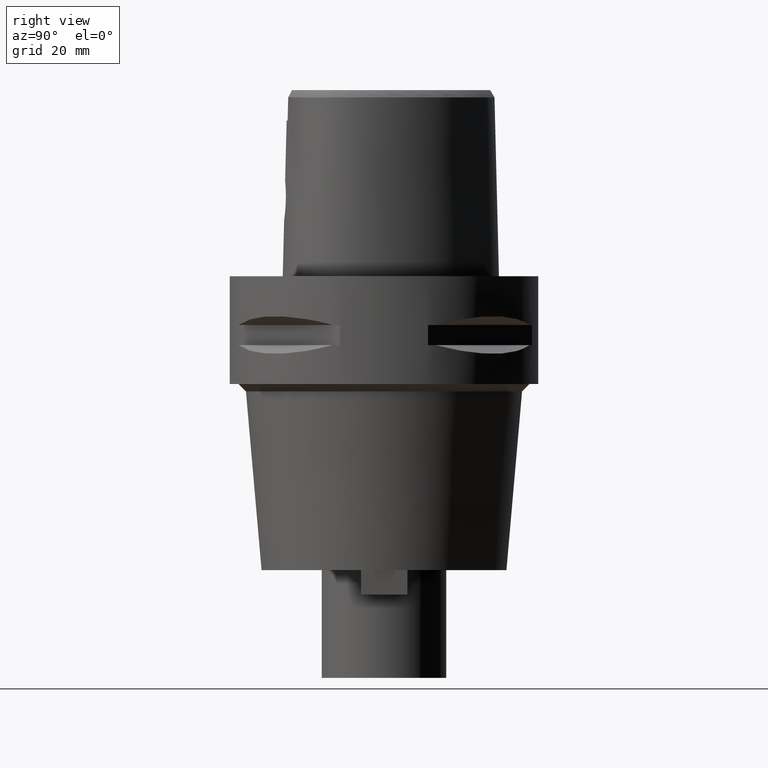
[diagram: clean part render]
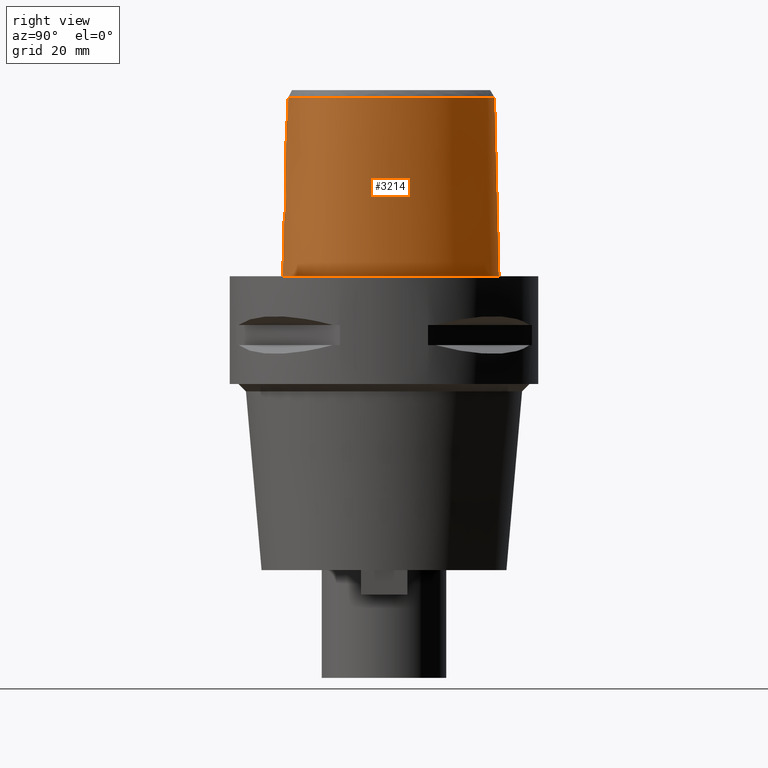
[diagram: same view with one face highlighted and labeled with its STEP entity id]
A machine part, right view. The second image highlights one B-rep face of the part: STEP entity #3214.
In plain terms, the highlighted face is a freeform B-spline surface patch.
Its self-contained STEP definition (entity closure, byte-faithful):
#138=CARTESIAN_POINT('',(3.637738219117E0,-1.956971420299E1,3.652185956444E1));
#148=CARTESIAN_POINT('',(-1.574547275019E-11,2.256201468012E1,
3.652186680744E1));
#149=CARTESIAN_POINT('',(3.791065170563E-1,2.256201468011E1,3.652186680744E1));
#150=CARTESIAN_POINT('',(1.138155706911E0,2.252483131287E1,3.652179190455E1));
#151=CARTESIAN_POINT('',(2.366879399490E0,2.234003555295E1,3.652187768307E1));
#152=CARTESIAN_POINT('',(3.642363182740E0,2.201542927447E1,3.652186339971E1));
#153=CARTESIAN_POINT('',(4.976406923680E0,2.153687948630E1,3.652187426106E1));
#154=CARTESIAN_POINT('',(6.356002048130E0,2.089326843363E1,3.652186565345E1));
#155=CARTESIAN_POINT('',(7.745814564190E0,2.009187307787E1,3.652186848449E1));
#156=CARTESIAN_POINT('',(9.119668395303E0,1.914770531107E1,3.652186622293E1));
#157=CARTESIAN_POINT('',(1.050734421812E1,1.803519749852E1,3.652186484464E1));
#158=CARTESIAN_POINT('',(1.193704338042E1,1.671289256032E1,3.652187383282E1));
#159=CARTESIAN_POINT('',(1.346075499583E1,1.508408155727E1,3.652184841414E1));
#160=CARTESIAN_POINT('',(1.500527319585E1,1.315863833472E1,3.652187449052E1));
#161=CARTESIAN_POINT('',(1.648466568739E1,1.099304188962E1,3.652186160776E1));
#162=CARTESIAN_POINT('',(1.782081048325E1,8.669564523783E0,3.652186705519E1));
#163=CARTESIAN_POINT('',(1.894419840574E1,6.307078885486E0,3.652185359856E1));
#164=CARTESIAN_POINT('',(1.980618015988E1,4.073203738174E0,3.652186240625E1));
#165=CARTESIAN_POINT('',(2.044168571582E1,1.982960421282E0,3.652186574336E1));
#166=CARTESIAN_POINT('',(2.087632270238E1,6.587592588252E-2,3.652187505669E1));
#167=CARTESIAN_POINT('',(2.114646121132E1,-1.709533858466E0,3.652186218405E1));
#168=CARTESIAN_POINT('',(2.127507371938E1,-3.382880816887E0,3.652186760210E1));
#169=CARTESIAN_POINT('',(2.126981192339E1,-4.993538901456E0,3.652187138971E1));
#170=CARTESIAN_POINT('',(2.113379074922E1,-6.501518713625E0,3.652186906588E1));
#171=CARTESIAN_POINT('',(2.087761722353E1,-7.895303703629E0,3.652186512023E1));
#172=CARTESIAN_POINT('',(2.051659142567E1,-9.160454675288E0,3.652187586985E1));
#173=CARTESIAN_POINT('',(2.006277993961E1,-1.030722138369E1,3.652186837323E1));
#174=CARTESIAN_POINT('',(1.952113886886E1,-1.135256282209E1,3.652186774464E1));
#175=CARTESIAN_POINT('',(1.887680163764E1,-1.233231536401E1,3.652184833957E1));
#176=CARTESIAN_POINT('',(1.810654925055E1,-1.328285101056E1,3.652187115818E1));
#177=CARTESIAN_POINT('',(1.718208030036E1,-1.422061117873E1,3.652186668865E1));
#178=CARTESIAN_POINT('',(1.607901219750E1,-1.514315696417E1,3.652187001958E1));
#179=CARTESIAN_POINT('',(1.480903132513E1,-1.601916286907E1,3.652186724195E1));
#180=CARTESIAN_POINT('',(1.340002602157E1,-1.682027576838E1,3.652186450935E1));
#181=CARTESIAN_POINT('',(1.189072962640E1,-1.752800325820E1,3.652186777834E1));
#182=CARTESIAN_POINT('',(1.021424186537E1,-1.817019378337E1,3.652186473433E1));
#183=CARTESIAN_POINT('',(8.308913895488E0,-1.874662261145E1,3.652185952074E1));
#184=CARTESIAN_POINT('',(6.151121602074E0,-1.923325809320E1,3.652187621349E1));
#185=CARTESIAN_POINT('',(4.504220992995E0,-1.947739334315E1,3.652183730368E1));
#186=CARTESIAN_POINT('',(3.637738219117E0,-1.956971420299E1,3.652185956444E1));
#261=DIRECTION('',(-1.665636293796E-9,-2.499140646182E-2,-9.996876660253E-1));
#262=VECTOR('',#261,1.225382733632E1);
#263=CARTESIAN_POINT('',(2.041042029991E-8,-1.988004246002E1,3.180000004972E1));
#264=LINE('',#263,#262);
#283=CARTESIAN_POINT('',(-1.411822297605E-12,-2.038876923348E1,1.145E1));
#288=DIRECTION('',(-8.651518977043E-13,-2.499051295361E-2,-9.996876883619E-1));
#289=VECTOR('',#288,1.145357708542E1);
#290=CARTESIAN_POINT('',(-1.411822297605E-12,-2.038876923348E1,1.145E1));
#291=LINE('',#290,#289);
#311=CARTESIAN_POINT('',(-1.132090624856E-11,-2.0675E1,1.489549224705E-13));
#312=CARTESIAN_POINT('',(8.906097000316E-1,-2.0675E1,1.489549224705E-13));
#313=CARTESIAN_POINT('',(2.643135756477E0,-2.060901049159E1,
-6.913022010130E-14));
#314=CARTESIAN_POINT('',(5.220057621802E0,-2.031876347371E1,
1.852338664873E-14));
#315=CARTESIAN_POINT('',(7.642498463497E0,-1.985687805136E1,0.E0));
#316=CARTESIAN_POINT('',(9.866795446182E0,-1.925187212744E1,0.E0));
#317=CARTESIAN_POINT('',(1.186503444999E1,-1.853419531318E1,0.E0));
#318=CARTESIAN_POINT('',(1.363063619573E1,-1.773256878492E1,0.E0));
#319=CARTESIAN_POINT('',(1.517202826033E1,-1.687023223800E1,0.E0));
#320=CARTESIAN_POINT('',(1.650502743971E1,-1.596503587464E1,0.E0));
#321=CARTESIAN_POINT('',(1.764966513211E1,-1.502881148042E1,0.E0));
#322=CARTESIAN_POINT('',(1.862626760705E1,-1.406826807182E1,0.E0));
#323=CARTESIAN_POINT('',(1.945189704370E1,-1.308766746701E1,0.E0));
#324=CARTESIAN_POINT('',(2.014374032257E1,-1.208645467664E1,0.E0));
#325=CARTESIAN_POINT('',(2.072424212024E1,-1.104098322707E1,0.E0));
#326=CARTESIAN_POINT('',(2.121564695238E1,-9.912013508921E0,0.E0));
#327=CARTESIAN_POINT('',(2.162276823185E1,-8.665951542582E0,0.E0));
#328=CARTESIAN_POINT('',(2.193233966434E1,-7.297829256469E0,0.E0));
#329=CARTESIAN_POINT('',(2.213238595589E1,-5.790208688961E0,0.E0));
#330=CARTESIAN_POINT('',(2.220492529326E1,-4.130517224504E0,0.E0));
#331=CARTESIAN_POINT('',(2.212850332757E1,-2.308987553355E0,0.E0));
#332=CARTESIAN_POINT('',(2.187901221407E1,-3.234572054225E-1,0.E0));
#333=CARTESIAN_POINT('',(2.143260581600E1,1.816516008433E0,0.E0));
#334=CARTESIAN_POINT('',(2.076989217249E1,4.085337105660E0,0.E0));
#335=CARTESIAN_POINT('',(1.988182628333E1,6.437613967877E0,0.E0));
#336=CARTESIAN_POINT('',(1.877481989869E1,8.809992386976E0,0.E0));
#337=CARTESIAN_POINT('',(1.747459780085E1,1.112642976187E1,0.E0));
#338=CARTESIAN_POINT('',(1.601530514414E1,1.332347667303E1,0.E0));
#339=CARTESIAN_POINT('',(1.444627419869E1,1.533853262695E1,0.E0));
#340=CARTESIAN_POINT('',(1.282082923998E1,1.712607364384E1,0.E0));
#341=CARTESIAN_POINT('',(1.118606168933E1,1.866422198458E1,0.E0));
#342=CARTESIAN_POINT('',(9.577441799457E0,1.995192659316E1,0.E0));
#343=CARTESIAN_POINT('',(8.019195294247E0,2.100161541737E1,0.E0));
#344=CARTESIAN_POINT('',(6.524047251581E0,2.183415539215E1,0.E0));
#345=CARTESIAN_POINT('',(5.096571927513E0,2.247284810807E1,0.E0));
#346=CARTESIAN_POINT('',(3.735692318093E0,2.294023748253E1,0.E0));
#347=CARTESIAN_POINT('',(2.436011895592E0,2.325616769966E1,1.816902620849E-14));
#348=CARTESIAN_POINT('',(1.192425373186E0,2.343666355688E1,
-6.780772893414E-14));
#349=CARTESIAN_POINT('',(3.921961475476E-1,2.347499999999E1,
1.461053500407E-13));
#350=CARTESIAN_POINT('',(5.792621527891E-11,2.347499999999E1,
1.461053500407E-13));
#355=CARTESIAN_POINT('',(5.792621527891E-11,2.347499999999E1,
1.461053500407E-13));
#394=CARTESIAN_POINT('',(-1.132090624856E-11,-2.0675E1,1.489549224705E-13));
#1015=CARTESIAN_POINT('',(-1.411822297605E-12,-2.038876923348E1,1.145E1));
#1016=CARTESIAN_POINT('',(3.245110688821E-1,-2.038876923348E1,1.145E1));
#1017=CARTESIAN_POINT('',(9.738409373357E-1,-2.037767153984E1,
1.152849208373E1));
#1018=CARTESIAN_POINT('',(1.891336780161E0,-2.033101339489E1,1.187430574171E1));
#1019=CARTESIAN_POINT('',(2.703624367703E0,-2.026287057748E1,1.243155604243E1));
#1020=CARTESIAN_POINT('',(3.360155222559E0,-2.018625432377E1,1.316834334785E1));
#1021=CARTESIAN_POINT('',(3.822149008994E0,-2.011550824802E1,1.404468790080E1));
#1022=CARTESIAN_POINT('',(4.059332413921E0,-2.006384548050E1,1.500230183735E1));
#1023=CARTESIAN_POINT('',(4.060074738671E0,-2.003888329631E1,1.599023878142E1));
#1024=CARTESIAN_POINT('',(3.825757490822E0,-2.004214101480E1,1.694459660643E1));
#1025=CARTESIAN_POINT('',(3.369098047449E0,-2.006855694839E1,1.781839745264E1));
#1026=CARTESIAN_POINT('',(2.715270727677E0,-2.010832393416E1,1.855834726161E1));
#1027=CARTESIAN_POINT('',(1.902433482808E0,-2.014904460966E1,1.912041070707E1));
#1028=CARTESIAN_POINT('',(9.785848680076E-1,-2.017899425575E1,
1.947091095601E1));
#1029=CARTESIAN_POINT('',(3.260365667211E-1,-2.018628283969E1,1.955E1));
#1030=CARTESIAN_POINT('',(0.E0,-2.018628283969E1,1.955E1));
#1035=CARTESIAN_POINT('',(3.736696120838E0,-1.967778323292E1,3.180000004973E1));
#1036=CARTESIAN_POINT('',(3.726005752326E0,-1.966575923680E1,3.232454431400E1));
#1037=CARTESIAN_POINT('',(3.704089546608E0,-1.964135163374E1,3.337368958251E1));
#1038=CARTESIAN_POINT('',(3.671106187705E0,-1.960533295284E1,3.494764256979E1));
#1039=CARTESIAN_POINT('',(3.649042743234E0,-1.958170238761E1,3.599710209057E1));
#1040=CARTESIAN_POINT('',(3.637738219117E0,-1.956971420299E1,3.652185956444E1));
#1045=DIRECTION('',(2.016563936666E-12,2.499051290954E-2,-9.996876883630E-1));
#1046=VECTOR('',#1045,3.653327657485E1);
#1047=CARTESIAN_POINT('',(-1.574547275019E-11,2.256201468012E1,
3.652186680744E1));
#1048=LINE('',#1047,#1046);
#1052=CARTESIAN_POINT('',(3.736696120838E0,-1.967778323292E1,3.180000004973E1));
#1053=CARTESIAN_POINT('',(3.322953877844E0,-1.972294683117E1,3.180000004973E1));
#1054=CARTESIAN_POINT('',(2.494485023251E0,-1.979770229043E1,3.179999998342E1));
#1055=CARTESIAN_POINT('',(1.247889117313E0,-1.986528006854E1,3.179999998343E1));
#1056=CARTESIAN_POINT('',(4.161790006858E-1,-1.988004246001E1,
3.180000004972E1));
#1057=CARTESIAN_POINT('',(2.041042029991E-8,-1.988004246002E1,
3.180000004972E1));
#1062=CARTESIAN_POINT('',(2.041042029991E-8,-1.988004246002E1,
3.180000004972E1));
#1691=VERTEX_POINT('',#138);
#1692=VERTEX_POINT('',#1035);
#1698=CARTESIAN_POINT('',(-1.574547275019E-11,2.256201468012E1,
3.652186680744E1));
#1699=VERTEX_POINT('',#1698);
#1700=VERTEX_POINT('',#355);
#1701=VERTEX_POINT('',#394);
#1702=VERTEX_POINT('',#1062);
#1703=CARTESIAN_POINT('',(0.E0,-2.018628283969E1,1.955E1));
#1704=VERTEX_POINT('',#1703);
#1705=VERTEX_POINT('',#283);
#3102=CARTESIAN_POINT('',(-6.840631435195E-1,-2.068668115835E1,
-7.304374573936E-1));
#3103=CARTESIAN_POINT('',(-6.779734155192E-1,-2.037023493269E1,
1.193047847076E1));
#3104=CARTESIAN_POINT('',(-6.718836875188E-1,-2.005378870703E1,
2.459139439892E1));
#3105=CARTESIAN_POINT('',(-6.657939595185E-1,-1.973734248137E1,
3.725231032707E1));
#3106=CARTESIAN_POINT('',(-4.561077449020E-1,-2.069106755065E1,
-7.304374573936E-1));
#3107=CARTESIAN_POINT('',(-4.520500682746E-1,-2.037458456955E1,
1.193047847076E1));
#3108=CARTESIAN_POINT('',(-4.479923916471E-1,-2.005810158845E1,
2.459139439892E1));
#3109=CARTESIAN_POINT('',(-4.439347150196E-1,-1.974161860736E1,
3.725231032707E1));
#3110=CARTESIAN_POINT('',(1.886855602975E0,-2.071358918984E1,
-7.304374573936E-1));
#3111=CARTESIAN_POINT('',(1.870063867131E0,-2.039691460829E1,1.193047847076E1));
#3112=CARTESIAN_POINT('',(1.853272131288E0,-2.008024002674E1,2.459139439892E1));
#3113=CARTESIAN_POINT('',(1.836480395444E0,-1.976356544519E1,3.725231032707E1));
#3114=CARTESIAN_POINT('',(6.344715575710E0,-2.031619964417E1,
-7.304374573936E-1));
#3115=CARTESIAN_POINT('',(6.288476596410E0,-2.000290581194E1,1.193047847076E1));
#3116=CARTESIAN_POINT('',(6.232237617110E0,-1.968961197971E1,2.459139439892E1));
#3117=CARTESIAN_POINT('',(6.175998637810E0,-1.937631814749E1,3.725231032707E1));
#3118=CARTESIAN_POINT('',(1.123887130062E1,-1.891049775489E1,
-7.304374573936E-1));
#3119=CARTESIAN_POINT('',(1.113012658935E1,-1.861140125337E1,1.193047847076E1));
#3120=CARTESIAN_POINT('',(1.102138187807E1,-1.831230475185E1,2.459139439892E1));
#3121=CARTESIAN_POINT('',(1.091263716680E1,-1.801320825032E1,3.725231032707E1));
#3122=CARTESIAN_POINT('',(1.468244496844E1,-1.723001772545E1,
-7.304374573936E-1));
#3123=CARTESIAN_POINT('',(1.452531268162E1,-1.695413756758E1,1.193047847076E1));
#3124=CARTESIAN_POINT('',(1.436818039480E1,-1.667825740971E1,2.459139439892E1));
#3125=CARTESIAN_POINT('',(1.421104810799E1,-1.640237725183E1,3.725231032707E1));
#3126=CARTESIAN_POINT('',(1.697022730765E1,-1.569280482676E1,
-7.304374573936E-1));
#3127=CARTESIAN_POINT('',(1.677374389126E1,-1.544292480872E1,1.193047847076E1));
#3128=CARTESIAN_POINT('',(1.657726047487E1,-1.519304479067E1,2.459139439892E1));
#3129=CARTESIAN_POINT('',(1.638077705847E1,-1.494316477262E1,3.725231032707E1));
#3130=CARTESIAN_POINT('',(1.858171406182E1,-1.418198046167E1,
-7.304374573936E-1));
#3131=CARTESIAN_POINT('',(1.835112161480E1,-1.396357042809E1,1.193047847076E1));
#3132=CARTESIAN_POINT('',(1.812052916778E1,-1.374516039451E1,2.459139439892E1));
#3133=CARTESIAN_POINT('',(1.788993672076E1,-1.352675036092E1,3.725231032707E1));
#3134=CARTESIAN_POINT('',(1.966427014176E1,-1.283600704347E1,
-7.304374573936E-1));
#3135=CARTESIAN_POINT('',(1.940779776756E1,-1.264961933178E1,1.193047847076E1));
#3136=CARTESIAN_POINT('',(1.915132539335E1,-1.246323162010E1,2.459139439892E1));
#3137=CARTESIAN_POINT('',(1.889485301915E1,-1.227684390842E1,3.725231032707E1));
#3138=CARTESIAN_POINT('',(2.036546124031E1,-1.175800452930E1,
-7.304374573936E-1));
#3139=CARTESIAN_POINT('',(2.009084482480E1,-1.159945466728E1,1.193047847076E1));
#3140=CARTESIAN_POINT('',(1.981622840929E1,-1.144090480526E1,2.459139439892E1));
#3141=CARTESIAN_POINT('',(1.954161199378E1,-1.128235494324E1,3.725231032707E1));
#3142=CARTESIAN_POINT('',(2.094844325358E1,-1.061175396772E1,
-7.304374573936E-1));
#3143=CARTESIAN_POINT('',(2.065879057490E1,-1.048283623551E1,1.193047847076E1));
#3144=CARTESIAN_POINT('',(2.036913789622E1,-1.035391850331E1,2.459139439892E1));
#3145=CARTESIAN_POINT('',(2.007948521753E1,-1.022500077110E1,3.725231032707E1));
#3146=CARTESIAN_POINT('',(2.157281238729E1,-9.001246193598E0,
-7.304374573936E-1));
#3147=CARTESIAN_POINT('',(2.126836751598E1,-8.910752275395E0,1.193047847076E1));
#3148=CARTESIAN_POINT('',(2.096392264468E1,-8.820258357193E0,2.459139439892E1));
#3149=CARTESIAN_POINT('',(2.065947777338E1,-8.729764438990E0,3.725231032707E1));
#3150=CARTESIAN_POINT('',(2.207548128559E1,-6.850245534691E0,
-7.304374573936E-1));
#3151=CARTESIAN_POINT('',(2.176083721782E1,-6.805026058369E0,1.193047847076E1));
#3152=CARTESIAN_POINT('',(2.144619315005E1,-6.759806582048E0,2.459139439892E1));
#3153=CARTESIAN_POINT('',(2.113154908228E1,-6.714587105726E0,3.725231032707E1));
#3154=CARTESIAN_POINT('',(2.226285555981E1,-4.100361500081E0,
-7.304374573936E-1));
#3155=CARTESIAN_POINT('',(2.194536988458E1,-4.102220498669E0,1.193047847076E1));
#3156=CARTESIAN_POINT('',(2.162788420935E1,-4.104079497256E0,2.459139439892E1));
#3157=CARTESIAN_POINT('',(2.131039853412E1,-4.105938495843E0,3.725231032707E1));
#3158=CARTESIAN_POINT('',(2.199640701045E1,-2.778990171980E-1,
-7.304374573936E-1));
#3159=CARTESIAN_POINT('',(2.168301111236E1,-3.332743857656E-1,
1.193047847076E1));
#3160=CARTESIAN_POINT('',(2.136961521427E1,-3.886497543332E-1,
2.459139439892E1));
#3161=CARTESIAN_POINT('',(2.105621931619E1,-4.440251229008E-1,
3.725231032707E1));
#3162=CARTESIAN_POINT('',(2.076670354388E1,4.663413652100E0,
-7.304374573936E-1));
#3163=CARTESIAN_POINT('',(2.046725053573E1,4.555493682354E0,1.193047847076E1));
#3164=CARTESIAN_POINT('',(2.016779752757E1,4.447573712608E0,2.459139439892E1));
#3165=CARTESIAN_POINT('',(1.986834451942E1,4.339653742862E0,3.725231032707E1));
#3166=CARTESIAN_POINT('',(1.808416037834E1,1.044089486934E1,
-7.304374573936E-1));
#3167=CARTESIAN_POINT('',(1.780867316506E1,1.028184213411E1,1.193047847076E1));
#3168=CARTESIAN_POINT('',(1.753318595179E1,1.012278939888E1,2.459139439892E1));
#3169=CARTESIAN_POINT('',(1.725769873851E1,9.963736663642E0,3.725231032707E1));
#3170=CARTESIAN_POINT('',(1.442198651575E1,1.565278599892E1,
-7.304374573936E-1));
#3171=CARTESIAN_POINT('',(1.417879766209E1,1.544741201763E1,1.193047847076E1));
#3172=CARTESIAN_POINT('',(1.393560880843E1,1.524203803634E1,2.459139439892E1));
#3173=CARTESIAN_POINT('',(1.369241995477E1,1.503666405505E1,3.725231032707E1));
#3174=CARTESIAN_POINT('',(1.075753573456E1,1.918839675324E1,
-7.304374573936E-1));
#3175=CARTESIAN_POINT('',(1.055288411908E1,1.894467594702E1,1.193047847076E1));
#3176=CARTESIAN_POINT('',(1.034823250359E1,1.870095514081E1,2.459139439892E1));
#3177=CARTESIAN_POINT('',(1.014358088811E1,1.845723433459E1,3.725231032707E1));
#3178=CARTESIAN_POINT('',(7.580410837342E0,2.133037925809E1,
-7.304374573936E-1));
#3179=CARTESIAN_POINT('',(7.420053185496E0,2.105635753444E1,1.193047847076E1));
#3180=CARTESIAN_POINT('',(7.259695533650E0,2.078233581079E1,2.459139439892E1));
#3181=CARTESIAN_POINT('',(7.099337881804E0,2.050831408715E1,3.725231032707E1));
#3182=CARTESIAN_POINT('',(5.105252914031E0,2.254305023722E1,
-7.304374573936E-1));
#3183=CARTESIAN_POINT('',(4.987110703744E0,2.224795289634E1,1.193047847076E1));
#3184=CARTESIAN_POINT('',(4.868968493456E0,2.195285555546E1,2.459139439892E1));
#3185=CARTESIAN_POINT('',(4.750826283169E0,2.165775821459E1,3.725231032707E1));
#3186=CARTESIAN_POINT('',(2.568271204636E0,2.331126237844E1,
-7.304374573936E-1));
#3187=CARTESIAN_POINT('',(2.503210924848E0,2.299958948555E1,1.193047847076E1));
#3188=CARTESIAN_POINT('',(2.438150645059E0,2.268791659266E1,2.459139439892E1));
#3189=CARTESIAN_POINT('',(2.373090365271E0,2.237624369978E1,3.725231032707E1));
#3190=CARTESIAN_POINT('',(6.155340737522E-1,2.351883497198E1,
-7.304374573936E-1));
#3191=CARTESIAN_POINT('',(5.990982063389E-1,2.320165478062E1,1.193047847076E1));
#3192=CARTESIAN_POINT('',(5.826623389256E-1,2.288447458926E1,2.459139439892E1));
#3193=CARTESIAN_POINT('',(5.662264715122E-1,2.256729439790E1,3.725231032707E1));
#3194=CARTESIAN_POINT('',(-4.812391251880E-1,2.348607175732E1,
-7.304374573936E-1));
#3195=CARTESIAN_POINT('',(-4.685452004032E-1,2.316976083680E1,
1.193047847076E1));
#3196=CARTESIAN_POINT('',(-4.558512756185E-1,2.285344991628E1,
2.459139439892E1));
#3197=CARTESIAN_POINT('',(-4.431573508337E-1,2.253713899577E1,
3.725231032707E1));
#3198=CARTESIAN_POINT('',(-7.217521644346E-1,2.347150798142E1,
-7.304374573936E-1));
#3199=CARTESIAN_POINT('',(-7.025952918552E-1,2.315559755022E1,
1.193047847076E1));
#3200=CARTESIAN_POINT('',(-6.834384192759E-1,2.283968711902E1,
2.459139439892E1));
#3201=CARTESIAN_POINT('',(-6.642815466965E-1,2.252377668782E1,
3.725231032707E1));
#3202=B_SPLINE_SURFACE_WITH_KNOTS('',3,3,((#3102,#3103,#3104,#3105),(#3106,
#3107,#3108,#3109),(#3110,#3111,#3112,#3113),(#3114,#3115,#3116,#3117),(#3118,
#3119,#3120,#3121),(#3122,#3123,#3124,#3125),(#3126,#3127,#3128,#3129),(#3130,
#3131,#3132,#3133),(#3134,#3135,#3136,#3137),(#3138,#3139,#3140,#3141),(#3142,
#3143,#3144,#3145),(#3146,#3147,#3148,#3149),(#3150,#3151,#3152,#3153),(#3154,
#3155,#3156,#3157),(#3158,#3159,#3160,#3161),(#3162,#3163,#3164,#3165),(#3166,
#3167,#3168,#3169),(#3170,#3171,#3172,#3173),(#3174,#3175,#3176,#3177),(#3178,
#3179,#3180,#3181),(#3182,#3183,#3184,#3185),(#3186,#3187,#3188,#3189),(#3190,
#3191,#3192,#3193),(#3194,#3195,#3196,#3197),(#3198,#3199,#3200,#3201)),
.UNSPECIFIED.,.F.,.F.,.F.,(4,1,1,1,1,1,1,1,1,1,1,1,1,1,1,1,1,1,1,1,1,1,4),(4,4),
(-8.985960173606E-3,0.E0,8.333333333344E-2,1.666666666668E-1,2.083333333333E-1,
2.5E-1,2.916666666667E-1,3.125E-1,3.333333333333E-1,3.541666666667E-1,3.75E-1,
4.166666666666E-1,4.583333333332E-1,4.999999999999E-1,5.833333333332E-1,
6.666666666665E-1,7.499999999998E-1,8.333333333330E-1,8.749999999997E-1,
9.166666666664E-1,9.583333333330E-1,1.E0,1.011710456763E0),(7.053152742409E-9,
9.999996402893E-1),.UNSPECIFIED.);
#3203=ORIENTED_EDGE('',*,*,#2571,.F.);
#3204=ORIENTED_EDGE('',*,*,#2555,.F.);
#3205=ORIENTED_EDGE('',*,*,#3094,.T.);
#3206=ORIENTED_EDGE('',*,*,#2551,.F.);
#3208=ORIENTED_EDGE('',*,*,#3207,.F.);
#3209=ORIENTED_EDGE('',*,*,#1914,.T.);
#3210=ORIENTED_EDGE('',*,*,#2180,.F.);
#3211=ORIENTED_EDGE('',*,*,#2545,.T.);
#3212=EDGE_LOOP('',(#3203,#3204,#3205,#3206,#3208,#3209,#3210,#3211));
#3213=FACE_OUTER_BOUND('',#3212,.F.);
#187=B_SPLINE_CURVE_WITH_KNOTS('',3,(#148,#149,#150,#151,#152,#153,#154,#155,
#156,#157,#158,#159,#160,#161,#162,#163,#164,#165,#166,#167,#168,#169,#170,#171,
#172,#173,#174,#175,#176,#177,#178,#179,#180,#181,#182,#183,#184,#185,#186),
.UNSPECIFIED.,.F.,.F.,(4,1,1,1,1,1,1,1,1,1,1,1,1,1,1,1,1,1,1,1,1,1,1,1,1,1,1,1,
1,1,1,1,1,1,1,1,4),(0.E0,2.777777777778E-2,5.555555555556E-2,8.333333333333E-2,
1.111111111111E-1,1.388888888889E-1,1.666666666667E-1,1.944444444444E-1,
2.222222222222E-1,2.5E-1,2.777777777778E-1,3.055555555556E-1,3.333333333333E-1,
3.611111111111E-1,3.888888888889E-1,4.166666666667E-1,4.444444444444E-1,
4.722222222222E-1,5.E-1,5.277777777778E-1,5.555555555556E-1,5.833333333333E-1,
6.111111111111E-1,6.388888888889E-1,6.666666666667E-1,6.944444444444E-1,
7.222222222222E-1,7.5E-1,7.777777777778E-1,8.055555555556E-1,8.333333333333E-1,
8.611111111111E-1,8.888888888889E-1,9.166666666667E-1,9.444444444444E-1,
9.722222222222E-1,1.E0),.UNSPECIFIED.);
#351=B_SPLINE_CURVE_WITH_KNOTS('',3,(#311,#312,#313,#314,#315,#316,#317,#318,
#319,#320,#321,#322,#323,#324,#325,#326,#327,#328,#329,#330,#331,#332,#333,#334,
#335,#336,#337,#338,#339,#340,#341,#342,#343,#344,#345,#346,#347,#348,#349,
#350),.UNSPECIFIED.,.F.,.F.,(4,1,1,1,1,1,1,1,1,1,1,1,1,1,1,1,1,1,1,1,1,1,1,1,1,
1,1,1,1,1,1,1,1,1,1,1,1,4),(0.E0,2.702702702703E-2,5.405405405405E-2,
8.108108108108E-2,1.081081081081E-1,1.351351351351E-1,1.621621621622E-1,
1.891891891892E-1,2.162162162162E-1,2.432432432432E-1,2.702702702703E-1,
2.972972972973E-1,3.243243243243E-1,3.513513513514E-1,3.783783783784E-1,
4.054054054054E-1,4.324324324324E-1,4.594594594595E-1,4.864864864865E-1,
5.135135135135E-1,5.405405405405E-1,5.675675675676E-1,5.945945945946E-1,
6.216216216216E-1,6.486486486486E-1,6.756756756757E-1,7.027027027027E-1,
7.297297297297E-1,7.567567567568E-1,7.837837837838E-1,8.108108108108E-1,
8.378378378378E-1,8.648648648649E-1,8.918918918919E-1,9.189189189189E-1,
9.459459459459E-1,9.729729729730E-1,1.E0),.UNSPECIFIED.);
#1031=B_SPLINE_CURVE_WITH_KNOTS('',3,(#1015,#1016,#1017,#1018,#1019,#1020,#1021,
#1022,#1023,#1024,#1025,#1026,#1027,#1028,#1029,#1030),.UNSPECIFIED.,.F.,.F.,(4,
1,1,1,1,1,1,1,1,1,1,1,1,4),(0.E0,7.692307692308E-2,1.538461538462E-1,
2.307692307692E-1,3.076923076923E-1,3.846153846154E-1,4.615384615385E-1,
5.384615384615E-1,6.153846153846E-1,6.923076923077E-1,7.692307692308E-1,
8.461538461538E-1,9.230769230769E-1,1.E0),.UNSPECIFIED.);
#1041=B_SPLINE_CURVE_WITH_KNOTS('',3,(#1035,#1036,#1037,#1038,#1039,#1040),
.UNSPECIFIED.,.F.,.F.,(4,1,1,4),(0.E0,3.333333333333E-1,6.666666666667E-1,1.E0),
.UNSPECIFIED.);
#1058=B_SPLINE_CURVE_WITH_KNOTS('',3,(#1052,#1053,#1054,#1055,#1056,#1057),
.UNSPECIFIED.,.F.,.F.,(4,1,1,4),(0.E0,3.333333333333E-1,6.666666666667E-1,1.E0),
.UNSPECIFIED.);
#1914=EDGE_CURVE('',#1692,#1691,#1041,.T.);
#2180=EDGE_CURVE('',#1699,#1691,#187,.T.);
#2545=EDGE_CURVE('',#1699,#1700,#1048,.T.);
#2551=EDGE_CURVE('',#1702,#1704,#264,.T.);
#2555=EDGE_CURVE('',#1705,#1701,#291,.T.);
#2571=EDGE_CURVE('',#1701,#1700,#351,.T.);
#3094=EDGE_CURVE('',#1705,#1704,#1031,.T.);
#3207=EDGE_CURVE('',#1692,#1702,#1058,.T.);
#3214=ADVANCED_FACE('',(#3213),#3202,.T.);